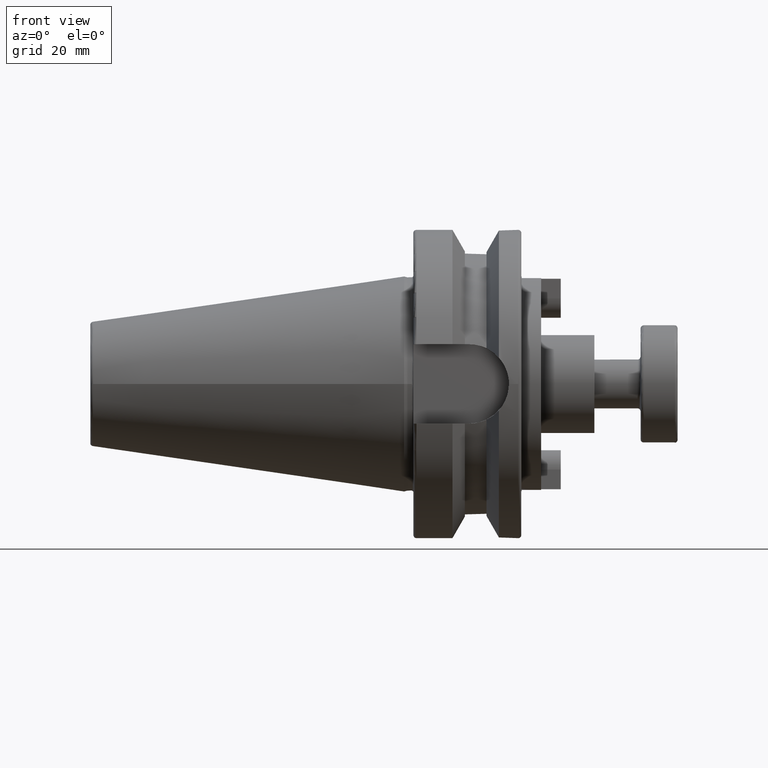
[diagram: clean part render]
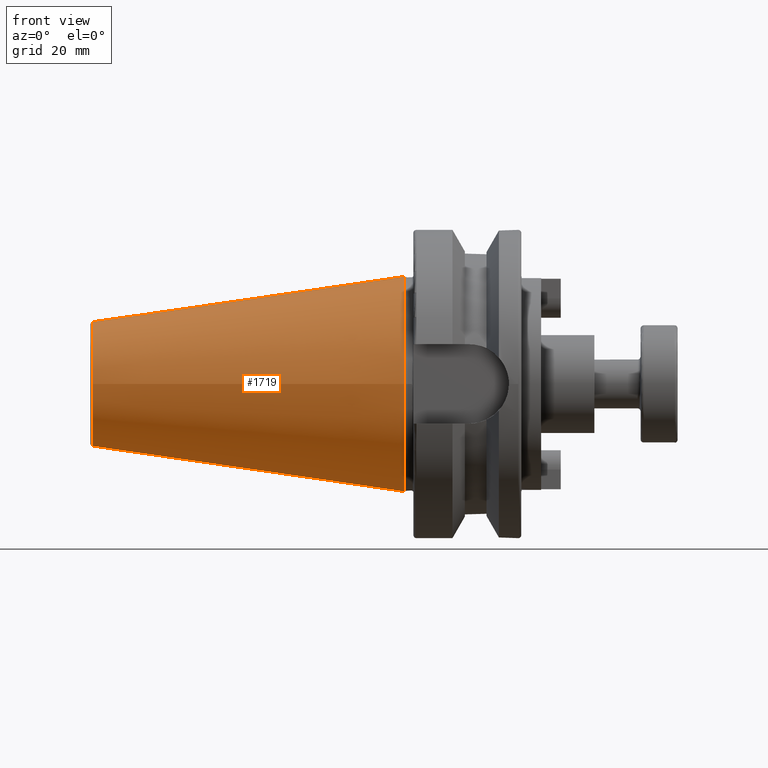
[diagram: same view with one face highlighted and labeled with its STEP entity id]
A machine part, front view. The second image highlights one B-rep face of the part: STEP entity #1719.
In plain terms, the highlighted conical surface has half-angle 8.297 deg.
Its self-contained STEP definition (entity closure, byte-faithful):
#123=CONICAL_SURFACE('',#1968,27.5644776223802,0.144812498238939);
#184=CIRCLE('',#1964,20.2039552447604);
#185=CIRCLE('',#1965,20.2039552447604);
#188=CIRCLE('',#1969,34.925);
#289=FACE_OUTER_BOUND('',#399,.T.);
#399=EDGE_LOOP('',(#1334,#1335,#1336,#1337,#1338));
#533=LINE('',#3010,#653);
#653=VECTOR('',#2330,27.5644776223802);
#796=VERTEX_POINT('',#3000);
#797=VERTEX_POINT('',#3001);
#799=VERTEX_POINT('',#3008);
#993=EDGE_CURVE('',#796,#797,#184,.T.);
#994=EDGE_CURVE('',#797,#796,#185,.T.);
#997=EDGE_CURVE('',#799,#799,#188,.T.);
#998=EDGE_CURVE('',#799,#796,#533,.T.);
#1334=ORIENTED_EDGE('',*,*,#997,.F.);
#1335=ORIENTED_EDGE('',*,*,#998,.T.);
#1336=ORIENTED_EDGE('',*,*,#993,.T.);
#1337=ORIENTED_EDGE('',*,*,#994,.T.);
#1338=ORIENTED_EDGE('',*,*,#998,.F.);
#1719=ADVANCED_FACE('',(#289),#123,.T.);
#1964=AXIS2_PLACEMENT_3D('',#3002,#2318,#2319);
#1965=AXIS2_PLACEMENT_3D('',#3003,#2320,#2321);
#1968=AXIS2_PLACEMENT_3D('',#3007,#2326,#2327);
#1969=AXIS2_PLACEMENT_3D('',#3009,#2328,#2329);
#2318=DIRECTION('center_axis',(1.,0.,0.));
#2319=DIRECTION('ref_axis',(0.,0.,-1.));
#2320=DIRECTION('center_axis',(1.,0.,0.));
#2321=DIRECTION('ref_axis',(0.,0.,-1.));
#2326=DIRECTION('center_axis',(1.,0.,0.));
#2327=DIRECTION('ref_axis',(0.,1.,0.));
#2328=DIRECTION('center_axis',(1.,0.,0.));
#2329=DIRECTION('ref_axis',(0.,0.,-1.));
#2330=DIRECTION('',(-0.989532981063281,0.144306893071729,1.76724974695192E-17));
#3000=CARTESIAN_POINT('',(-100.944306893072,-20.2039552447604,-2.47427091206122E-15));
#3001=CARTESIAN_POINT('',(-100.944306893072,-2.47427091206122E-15,20.2039552447604));
#3002=CARTESIAN_POINT('Origin',(-100.944306893072,0.,0.));
#3003=CARTESIAN_POINT('Origin',(-100.944306893072,0.,0.));
#3007=CARTESIAN_POINT('Origin',(-50.4721534465359,0.,0.));
#3008=CARTESIAN_POINT('',(-8.88178419700125E-15,-34.925,-4.27707894602213E-15));
#3009=CARTESIAN_POINT('Origin',(0.,0.,0.));
#3010=CARTESIAN_POINT('',(-50.4721534465359,-27.5644776223802,-3.37567492904167E-15));